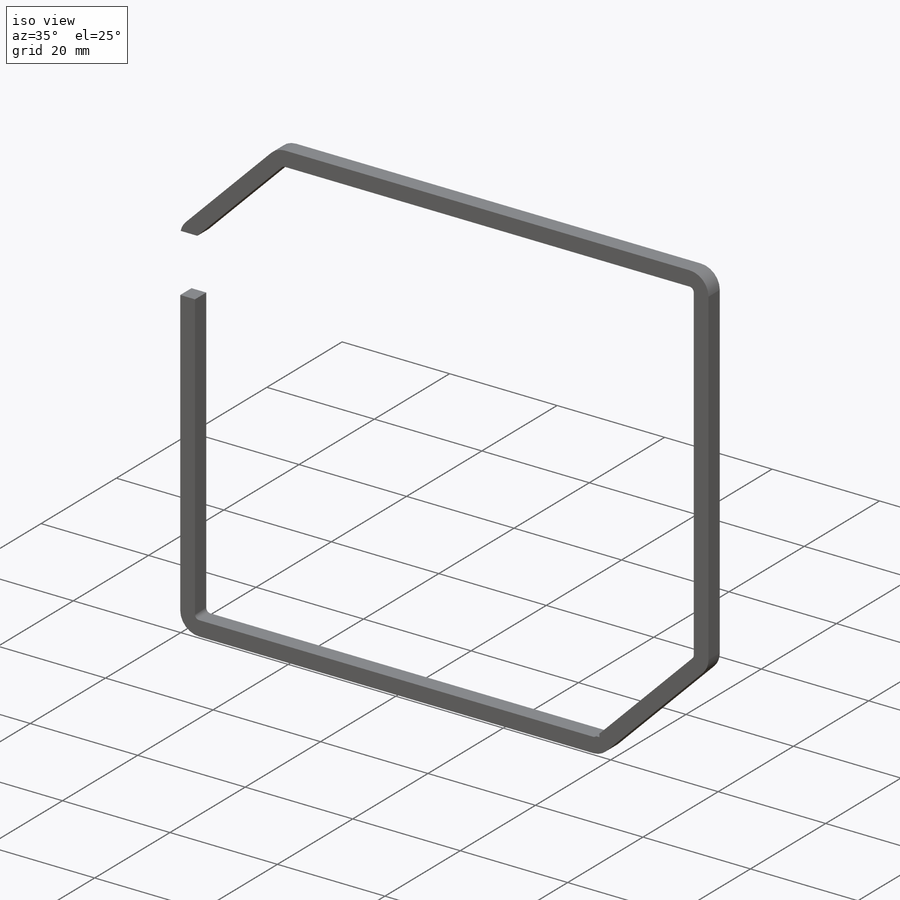
[diagram: iso view]
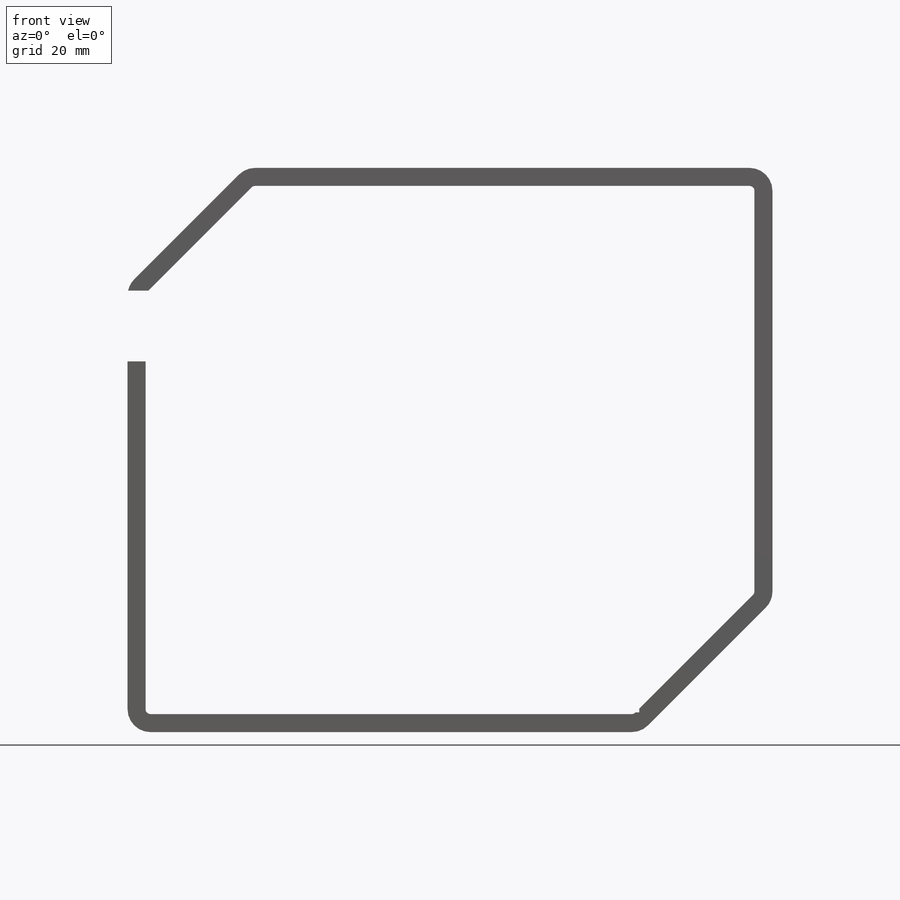
[diagram: front view]
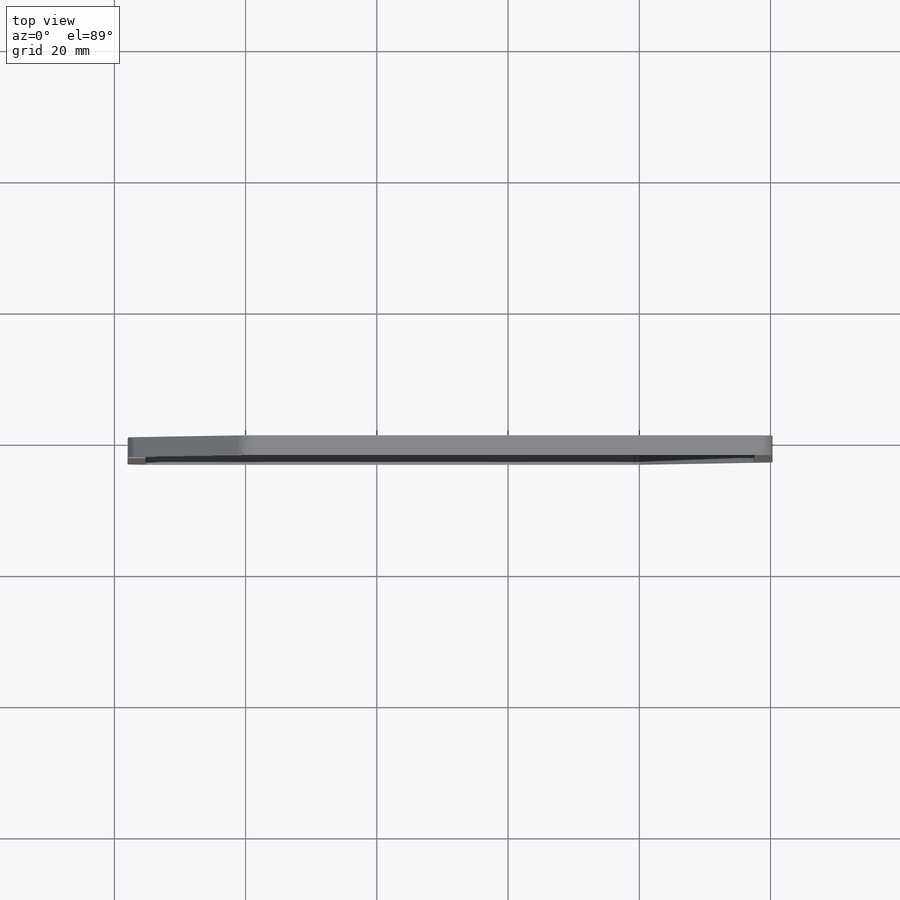
[diagram: top view]
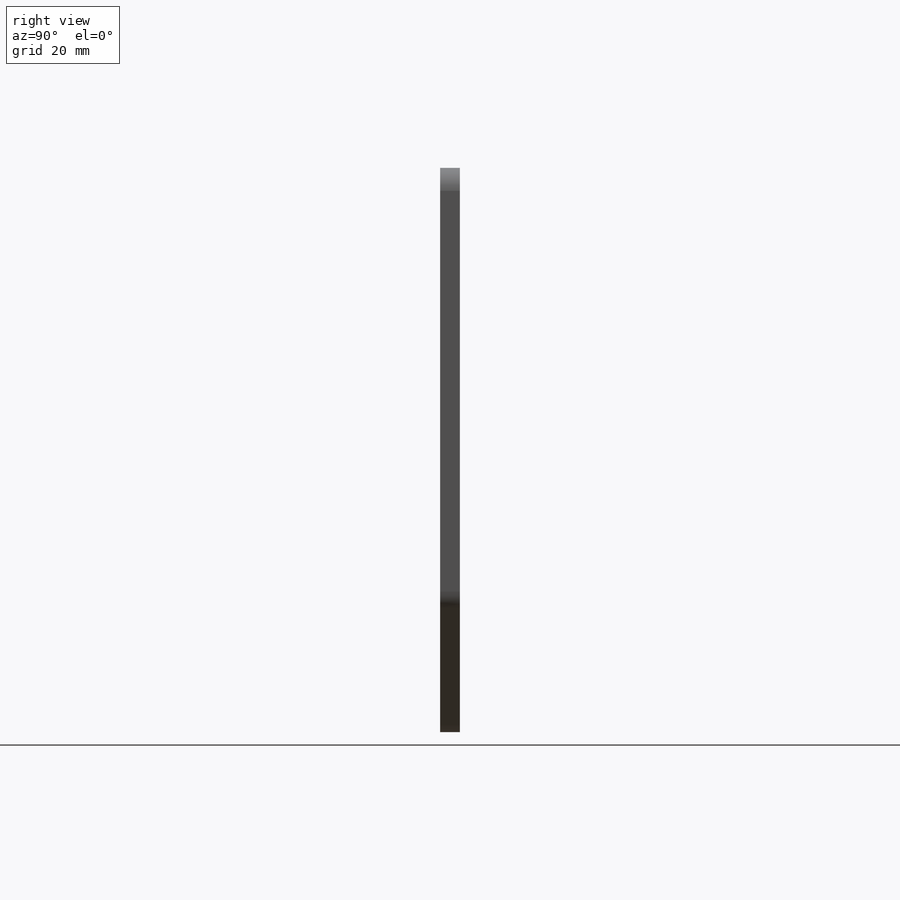
[diagram: right view]
SOLIDWORKS PART (.sldprt)
format: sldprt  version: not decoded by parser v0  size: 307,200 bytes
history: native  units: mm
features: sketch x4, cut_extrude x3, material x1, extrude x1, fillet x1 (+12 scaffold rows collapsed)
feature tree (22):
  scaffold x12  (default folders/planes/origin — collapsed)
  material  "Acrylic (Medium-high impact)"
  sketch  "Sketch1"  dims[c1.D1=80.3mm c1.D2=66.0mm c1.D3=20.0mm c1.D4=18.0mm c1.D5=18.5mm c2.D5=40.0deg c2.D6=~17.589622mm c3.D6=~133.554993deg c4.D6=~25.527334mm c5.D6=45.0deg c5.D5=~23.835072mm c6.D5=45.0deg]
  extrude  "Boss-Extrude1"  Depth=3mm
  fillet  "Fillet1"  Radius=3.5mm
  sketch  "Sketch2"  dims[c1.D1=7.0mm c1.D2=7.0mm c1.D3=7.0mm c2.D1=4.9mm c2.D2=3.0mm c2.D3=10.5mm c2.D4=45.0mm c2.D5=72.4mm]
  cut_extrude  "Cut-Extrude1"  [1 undecoded]
  sketch  "Sketch3"  dims[c1.D1=18.0mm c1.D2=18.5mm c1.D3=39.0mm c1.D4=33.0mm c1.D5=15.0mm c1.D6=30.0mm c1.D7=10.8mm c1.D8=15.0mm c1.D9=3.0mm c1.D10=3.0mm c1.D11=3.0mm c1.D12=3.0mm c1.D13=3.0mm c1.D14=3.0mm c1.D15=2.0mm c2.D11=3.0mm c2.D12=3.0mm c2.D13=3.0mm c2.D16=6.0mm c2.D17=6.0mm c2.D18=3.0mm c2.D19=3.0mm c3.D16=6.0mm c3.D17=6.0mm c3.D18=6.0mm c3.D19=3.0mm c3.D20=3.0mm]
  cut_extrude  "Cut-Extrude2"  [1 undecoded]
  sketch  "Sketch4"  dims[D1=2.75mm]
  cut_extrude  "Cut-Extrude3"  [1 undecoded]
decode coverage: 6 of 9 modeling features carry decoded parameters
note: ~ marks probable driven/reference dimensions
note: 3 parameter values undecoded
summary: no parameter record found for 3 features
note: suppression state not decoded; provenance and decode notes live in map.json
